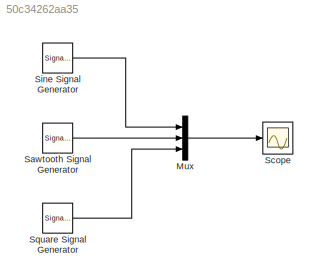
MODEL slx_50c34262aa35
KIND model
CONFIG AbsTol = auto
CONFIG FixedStep = auto
CONFIG MaxStep = auto
CONFIG MinStep = auto
CONFIG RelTol = 1e-3
CONFIG SampleTimeConstraint = Unconstrained
CONFIG Solver = ode45
CONFIG SolverMode = Auto
CONFIG SolverName = ode45
CONFIG StartTime = 0.0
CONFIG StopTime = 10.0
BLOCK [Mux] Mux
  DisplayOption = bar
  Inputs = 3
  Ports = [3, 1]
BLOCK [SignalGenerator] Sawtooth Signal Generator
  Ports = [0, 1]
  Units = rad/sec
  WaveForm = sawtooth
BLOCK [Scope] Scope
  Floating = off
  NumInputPorts = 1
  Ports = [1]
BLOCK [SignalGenerator] Sine Signal Generator
  Ports = [0, 1]
  Units = rad/sec
BLOCK [SignalGenerator] Square Signal Generator
  Ports = [0, 1]
  Units = rad/sec
  WaveForm = square
LINE Mux:1 -> Scope:1
LINE Sawtooth Signal Generator:1 -> Mux:2
LINE Sine Signal Generator:1 -> Mux:1
LINE Square Signal Generator:1 -> Mux:3
